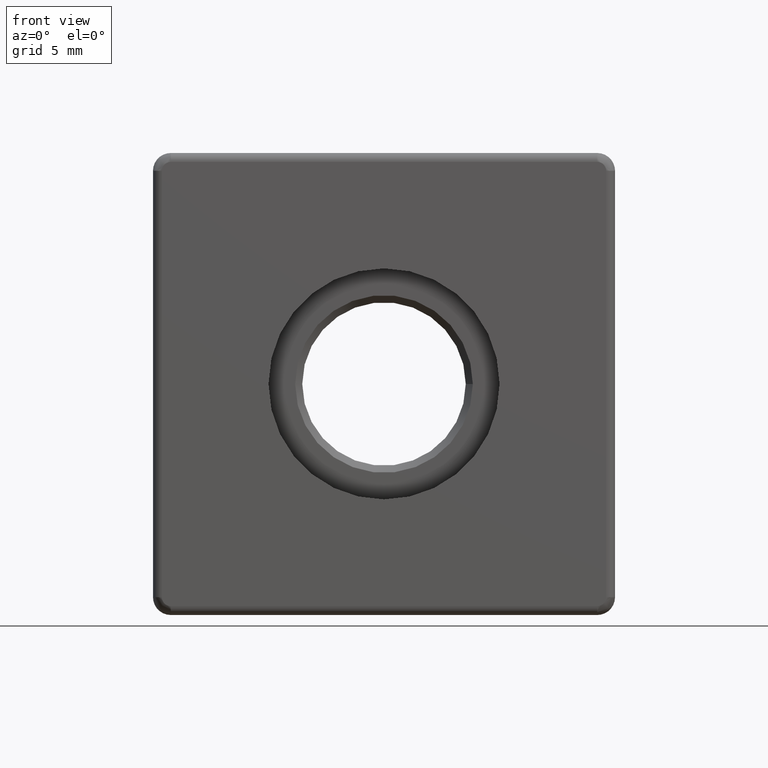
[diagram: clean part render]
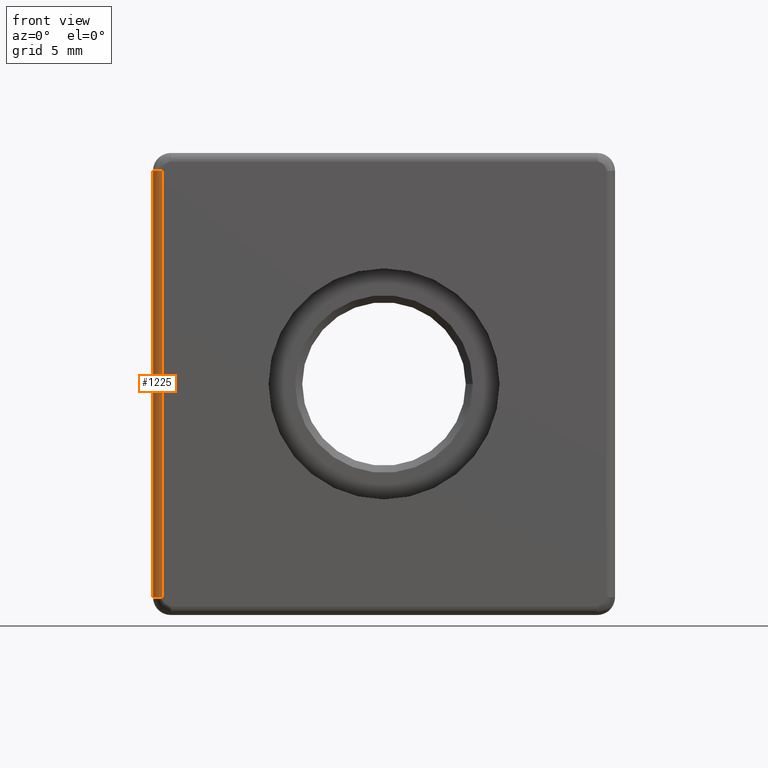
[diagram: same view with one face highlighted and labeled with its STEP entity id]
A machine part, front view. The second image highlights one B-rep face of the part: STEP entity #1225.
In plain terms, the highlighted cylindrical surface (edge-blend (fillet) strip) has radius 0.5 mm, axis along (0, 0, -1).
Its self-contained STEP definition (entity closure, byte-faithful):
#42=CYLINDRICAL_SURFACE('',#1328,0.5);
#113=LINE('',#2143,#201);
#114=LINE('',#2144,#202);
#201=VECTOR('',#1583,24.);
#202=VECTOR('',#1584,24.);
#296=FACE_OUTER_BOUND('',#370,.T.);
#370=EDGE_LOOP('',(#970,#971,#972,#973));
#451=CIRCLE('',#1326,0.5);
#453=CIRCLE('',#1329,0.5);
#586=VERTEX_POINT('',#2134);
#587=VERTEX_POINT('',#2136);
#588=VERTEX_POINT('',#2140);
#589=VERTEX_POINT('',#2141);
#729=EDGE_CURVE('',#586,#587,#451,.T.);
#731=EDGE_CURVE('',#588,#589,#453,.T.);
#732=EDGE_CURVE('',#589,#587,#113,.T.);
#733=EDGE_CURVE('',#586,#588,#114,.T.);
#970=ORIENTED_EDGE('',*,*,#731,.T.);
#971=ORIENTED_EDGE('',*,*,#732,.T.);
#972=ORIENTED_EDGE('',*,*,#729,.F.);
#973=ORIENTED_EDGE('',*,*,#733,.T.);
#1225=ADVANCED_FACE('',(#296),#42,.T.);
#1326=AXIS2_PLACEMENT_3D('',#2137,#1575,#1576);
#1328=AXIS2_PLACEMENT_3D('',#2139,#1579,#1580);
#1329=AXIS2_PLACEMENT_3D('',#2142,#1581,#1582);
#1575=DIRECTION('center_axis',(0.,0.,-1.));
#1576=DIRECTION('ref_axis',(0.,-1.,0.));
#1579=DIRECTION('center_axis',(1.70803542250024E-16,0.,-1.));
#1580=DIRECTION('ref_axis',(-0.707106781186549,-0.707106781186546,0.));
#1581=DIRECTION('center_axis',(0.,0.,-1.));
#1582=DIRECTION('ref_axis',(0.,-1.,0.));
#1583=DIRECTION('',(1.70803542250024E-16,0.,-1.));
#1584=DIRECTION('',(-1.70803542250024E-16,0.,1.));
#2134=CARTESIAN_POINT('',(-12.5,-4.5,-12.));
#2136=CARTESIAN_POINT('',(-13.,-4.,-12.));
#2137=CARTESIAN_POINT('Origin',(-12.5,-4.,-12.));
#2139=CARTESIAN_POINT('Origin',(-12.5,-4.,6.5));
#2140=CARTESIAN_POINT('',(-12.5,-4.5,12.));
#2141=CARTESIAN_POINT('',(-13.,-4.,12.));
#2142=CARTESIAN_POINT('Origin',(-12.5,-4.,12.));
#2143=CARTESIAN_POINT('',(-13.,-4.,6.5));
#2144=CARTESIAN_POINT('',(-12.5,-4.5,6.5));